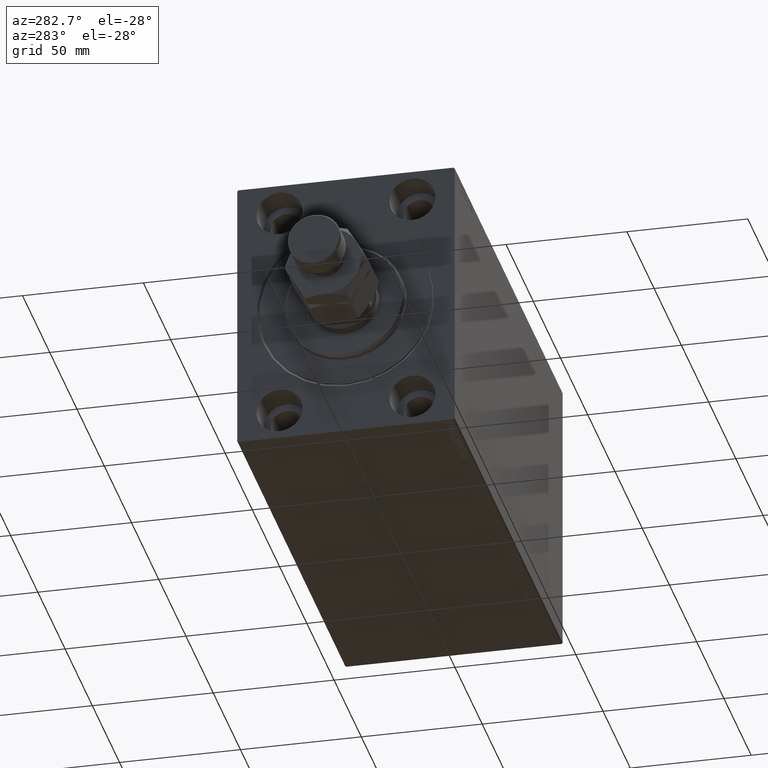
[diagram: clean part render]
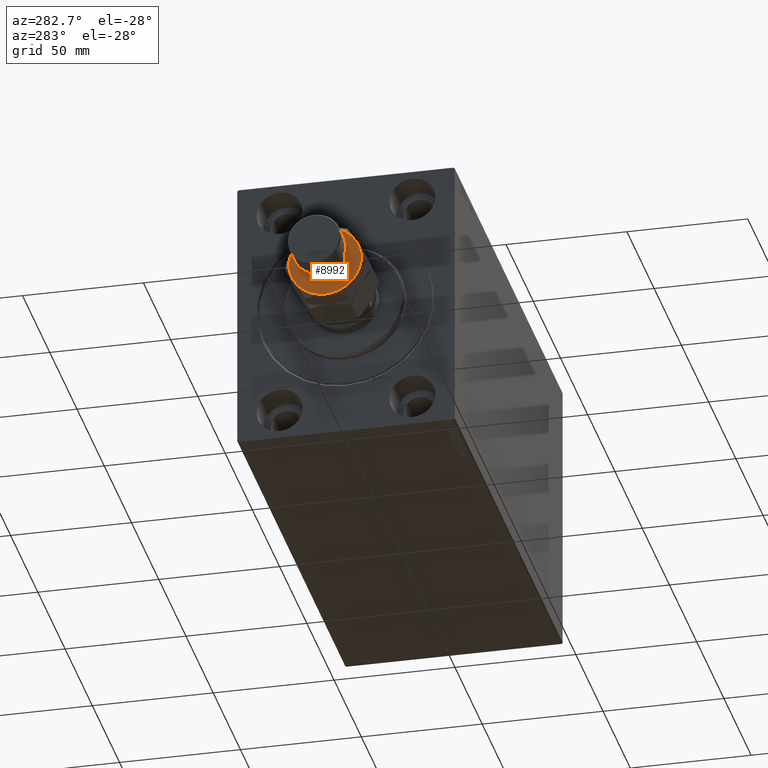
[diagram: same view with one face highlighted and labeled with its STEP entity id]
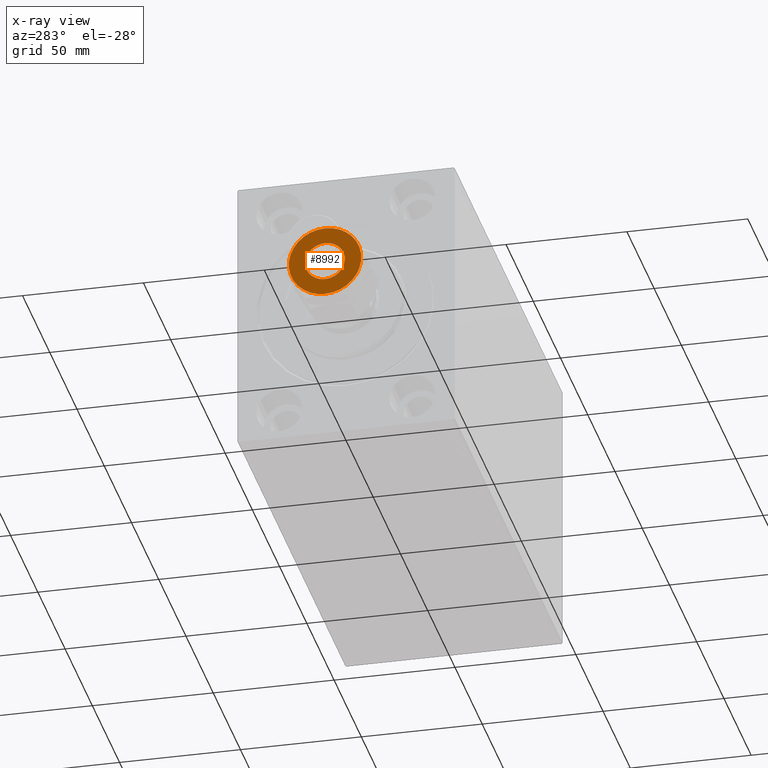
[diagram: x-ray of the same camera — body ghosted, the highlighted face saturated]
A machine part, auxiliary view. The second image highlights one B-rep face of the part: STEP entity #8992.
The next image is the same camera in x-ray: the body ghosted, the highlighted face saturated — about 0% of this face is hidden behind the body in this view.
In plain terms, the highlighted planar face has unit normal (-1, 0, 0).
Its self-contained STEP definition (entity closure, byte-faithful):
#963 = CARTESIAN_POINT ( 'NONE',  ( -8.200000000000001066, 1.004210375300829674E-15, 25.00000000000000000 ) ) ;
#1115 = AXIS2_PLACEMENT_3D ( 'NONE', #12215, #39151, #43499 ) ;
#1234 = DIRECTION ( 'NONE',  ( 1.000000000000000000, 0.000000000000000000, 0.000000000000000000 ) ) ;
#2476 = AXIS2_PLACEMENT_3D ( 'NONE', #19422, #8825, #12726 ) ;
#3195 = AXIS2_PLACEMENT_3D ( 'NONE', #8137, #15702, #1234 ) ;
#3908 = ORIENTED_EDGE ( 'NONE', *, *, #43091, .T. ) ;
#3920 = CIRCLE ( 'NONE', #3195, 14.99999999999999645 ) ;
#3992 = VERTEX_POINT ( 'NONE', #8154 ) ;
#4042 = EDGE_LOOP ( 'NONE', ( #38499, #39415 ) ) ;
#4494 = CARTESIAN_POINT ( 'NONE',  ( 0.000000000000000000, 0.000000000000000000, 25.00000000000000000 ) ) ;
#4646 = CIRCLE ( 'NONE', #6842, 14.99999999999999645 ) ;
#4768 = EDGE_CURVE ( 'NONE', #19609, #45224, #6877, .T. ) ;
#4959 = DIRECTION ( 'NONE',  ( 1.000000000000000000, 0.000000000000000000, 0.000000000000000000 ) ) ;
#5746 = ORIENTED_EDGE ( 'NONE', *, *, #38304, .T. ) ;
#6096 = CARTESIAN_POINT ( 'NONE',  ( 14.99999999999999645, 1.502314598737159426E-15, 25.00000000000000000 ) ) ;
#6304 = CARTESIAN_POINT ( 'NONE',  ( -14.99999999999999645, 0.000000000000000000, 25.00000000000000000 ) ) ;
#6842 = AXIS2_PLACEMENT_3D ( 'NONE', #22843, #23069, #29962 ) ;
#6877 = CIRCLE ( 'NONE', #2476, 8.200000000000001066 ) ;
#7573 = CARTESIAN_POINT ( 'NONE',  ( 8.200000000000001066, 0.000000000000000000, 25.00000000000000000 ) ) ;
#7742 = AXIS2_PLACEMENT_3D ( 'NONE', #4494, #10948, #43140 ) ;
#8099 = FACE_BOUND ( 'NONE', #4042, .T. ) ;
#8137 = CARTESIAN_POINT ( 'NONE',  ( 0.000000000000000000, 0.000000000000000000, 25.00000000000000000 ) ) ;
#8154 = CARTESIAN_POINT ( 'NONE',  ( -7.500000000000000000, 12.99038105676657651, 25.00000000000000000 ) ) ;
#8357 = CARTESIAN_POINT ( 'NONE',  ( 0.000000000000000000, 0.000000000000000000, 25.00000000000000000 ) ) ;
#8537 = FACE_OUTER_BOUND ( 'NONE', #43078, .T. ) ;
#8825 = DIRECTION ( 'NONE',  ( -0.000000000000000000, 0.000000000000000000, -1.000000000000000000 ) ) ;
#8992 = ADVANCED_FACE ( 'NONE', ( #8099, #8537 ), #22361, .T. ) ;
#9061 = ORIENTED_EDGE ( 'NONE', *, *, #29737, .T. ) ;
#10948 = DIRECTION ( 'NONE',  ( -0.000000000000000000, 0.000000000000000000, -1.000000000000000000 ) ) ;
#11349 = ORIENTED_EDGE ( 'NONE', *, *, #36447, .T. ) ;
#12215 = CARTESIAN_POINT ( 'NONE',  ( 0.000000000000000000, 0.000000000000000000, 25.00000000000000000 ) ) ;
#12726 = DIRECTION ( 'NONE',  ( 1.000000000000000000, 0.000000000000000000, 0.000000000000000000 ) ) ;
#13472 = DIRECTION ( 'NONE',  ( 0.000000000000000000, -0.000000000000000000, 1.000000000000000000 ) ) ;
#13928 = CARTESIAN_POINT ( 'NONE',  ( 0.000000000000000000, 0.000000000000000000, 25.00000000000000000 ) ) ;
#14655 = AXIS2_PLACEMENT_3D ( 'NONE', #33034, #25450, #4959 ) ;
#15093 = CIRCLE ( 'NONE', #7742, 8.200000000000001066 ) ;
#15702 = DIRECTION ( 'NONE',  ( 0.000000000000000000, -0.000000000000000000, 1.000000000000000000 ) ) ;
#18726 = DIRECTION ( 'NONE',  ( 0.000000000000000000, -0.000000000000000000, 1.000000000000000000 ) ) ;
#19422 = CARTESIAN_POINT ( 'NONE',  ( 0.000000000000000000, 0.000000000000000000, 25.00000000000000000 ) ) ;
#19555 = DIRECTION ( 'NONE',  ( 1.000000000000000000, 0.000000000000000000, 0.000000000000000000 ) ) ;
#19609 = VERTEX_POINT ( 'NONE', #963 ) ;
#22361 = PLANE ( 'NONE',  #1115 ) ;
#22400 = DIRECTION ( 'NONE',  ( 1.000000000000000000, 0.000000000000000000, 0.000000000000000000 ) ) ;
#22843 = CARTESIAN_POINT ( 'NONE',  ( 0.000000000000000000, 0.000000000000000000, 25.00000000000000000 ) ) ;
#23069 = DIRECTION ( 'NONE',  ( 0.000000000000000000, -0.000000000000000000, 1.000000000000000000 ) ) ;
#23610 = DIRECTION ( 'NONE',  ( 1.000000000000000000, 0.000000000000000000, 0.000000000000000000 ) ) ;
#24447 = CIRCLE ( 'NONE', #36208, 14.99999999999999645 ) ;
#25450 = DIRECTION ( 'NONE',  ( 0.000000000000000000, -0.000000000000000000, 1.000000000000000000 ) ) ;
#25755 = VERTEX_POINT ( 'NONE', #6304 ) ;
#25877 = CARTESIAN_POINT ( 'NONE',  ( 7.500000000000001776, -12.99038105676657473, 25.00000000000000000 ) ) ;
#26681 = AXIS2_PLACEMENT_3D ( 'NONE', #8357, #18726, #22400 ) ;
#27126 = DIRECTION ( 'NONE',  ( 0.000000000000000000, 0.000000000000000000, 1.000000000000000000 ) ) ;
#29737 = EDGE_CURVE ( 'NONE', #44545, #37367, #40400, .T. ) ;
#29833 = VERTEX_POINT ( 'NONE', #6096 ) ;
#29962 = DIRECTION ( 'NONE',  ( 1.000000000000000000, 0.000000000000000000, 0.000000000000000000 ) ) ;
#30534 = AXIS2_PLACEMENT_3D ( 'NONE', #37029, #27126, #19555 ) ;
#30551 = CARTESIAN_POINT ( 'NONE',  ( 7.499999999999998224, 12.99038105676657651, 25.00000000000000000 ) ) ;
#32869 = EDGE_CURVE ( 'NONE', #37367, #29833, #37689, .T. ) ;
#33034 = CARTESIAN_POINT ( 'NONE',  ( 0.000000000000000000, 0.000000000000000000, 25.00000000000000000 ) ) ;
#33461 = ORIENTED_EDGE ( 'NONE', *, *, #38311, .T. ) ;
#35057 = VERTEX_POINT ( 'NONE', #30551 ) ;
#35511 = ORIENTED_EDGE ( 'NONE', *, *, #32869, .T. ) ;
#35819 = CARTESIAN_POINT ( 'NONE',  ( -7.500000000000000888, -12.99038105676657828, 25.00000000000000000 ) ) ;
#36208 = AXIS2_PLACEMENT_3D ( 'NONE', #13928, #13472, #23610 ) ;
#36447 = EDGE_CURVE ( 'NONE', #25755, #44545, #24447, .T. ) ;
#37029 = CARTESIAN_POINT ( 'NONE',  ( 0.000000000000000000, 0.000000000000000000, 25.00000000000000000 ) ) ;
#37367 = VERTEX_POINT ( 'NONE', #25877 ) ;
#37689 = CIRCLE ( 'NONE', #26681, 14.99999999999999645 ) ;
#38304 = EDGE_CURVE ( 'NONE', #35057, #3992, #3920, .T. ) ;
#38311 = EDGE_CURVE ( 'NONE', #3992, #25755, #4646, .T. ) ;
#38499 = ORIENTED_EDGE ( 'NONE', *, *, #42645, .T. ) ;
#38606 = CIRCLE ( 'NONE', #30534, 14.99999999999999645 ) ;
#39151 = DIRECTION ( 'NONE',  ( 0.000000000000000000, -0.000000000000000000, 1.000000000000000000 ) ) ;
#39415 = ORIENTED_EDGE ( 'NONE', *, *, #4768, .T. ) ;
#40400 = CIRCLE ( 'NONE', #14655, 14.99999999999999645 ) ;
#42645 = EDGE_CURVE ( 'NONE', #45224, #19609, #15093, .T. ) ;
#43078 = EDGE_LOOP ( 'NONE', ( #35511, #3908, #5746, #33461, #11349, #9061 ) ) ;
#43091 = EDGE_CURVE ( 'NONE', #29833, #35057, #38606, .T. ) ;
#43140 = DIRECTION ( 'NONE',  ( 1.000000000000000000, 0.000000000000000000, 0.000000000000000000 ) ) ;
#43499 = DIRECTION ( 'NONE',  ( 1.000000000000000000, 0.000000000000000000, -0.000000000000000000 ) ) ;
#44545 = VERTEX_POINT ( 'NONE', #35819 ) ;
#45224 = VERTEX_POINT ( 'NONE', #7573 ) ;